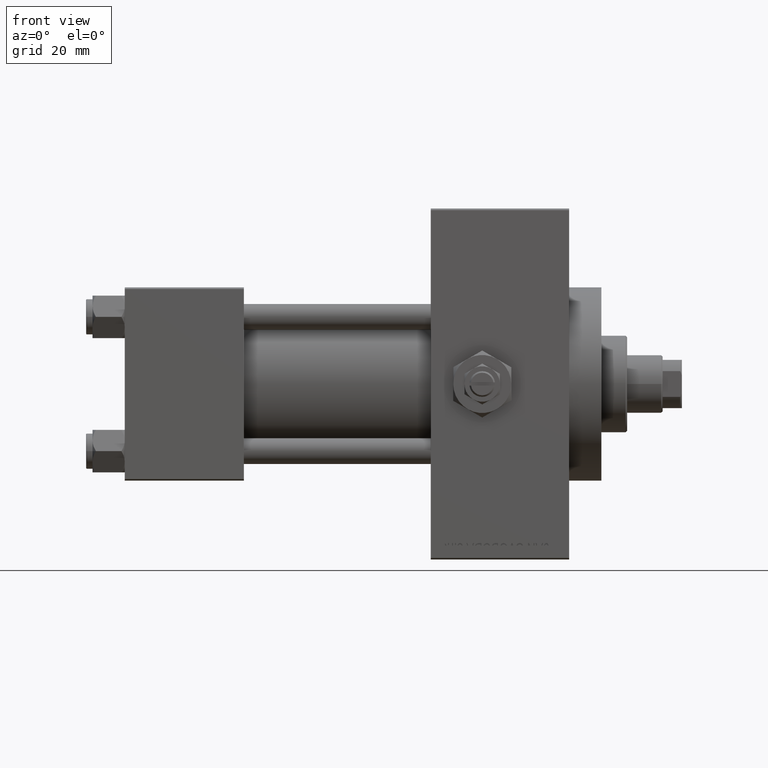
[diagram: clean part render]
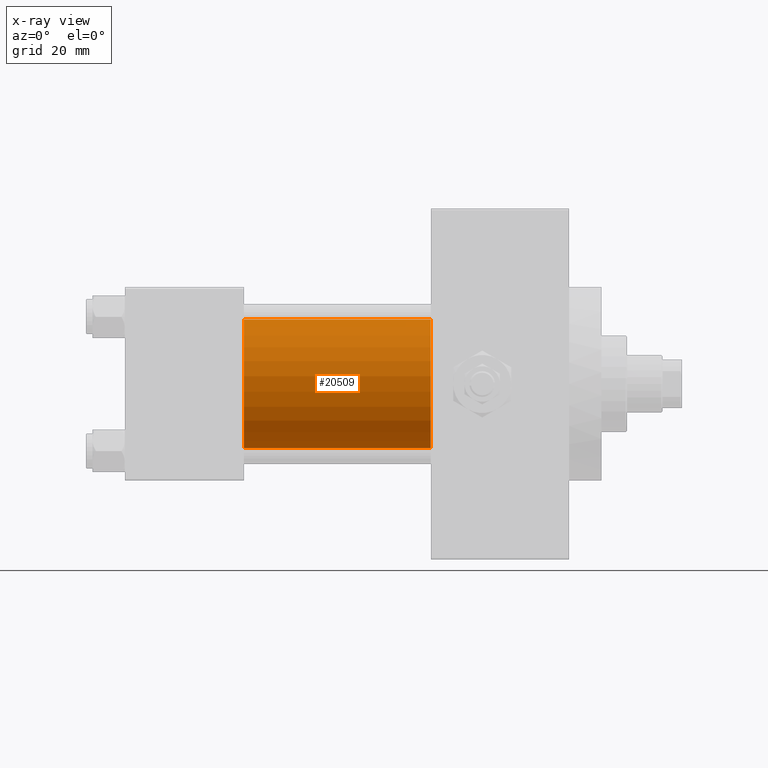
[diagram: x-ray — body ghosted, one internal face saturated and labeled with its STEP entity id]
A machine part, front view, then the same camera in x-ray: the body is ghosted and one INTERNAL B-rep face — a face not visible from any outside direction — is saturated and labeled: STEP entity #20509.
In plain terms, the highlighted cylindrical surface (partial cylindrical patch) has radius 20 mm, axis along (-1, -0, -0).
Its self-contained STEP definition (entity closure, byte-faithful):
#1184 = CIRCLE ( 'NONE', #15410, 20.00000000000000000 ) ;
#1363 = ORIENTED_EDGE ( 'NONE', *, *, #38021, .F. ) ;
#2668 = ORIENTED_EDGE ( 'NONE', *, *, #31068, .F. ) ;
#3313 = DIRECTION ( 'NONE',  ( 1.000000000000000000, 0.000000000000000000, 0.000000000000000000 ) ) ;
#3729 = CARTESIAN_POINT ( 'NONE',  ( 95.00000000000000000, -2.602085213965210642E-15, 0.000000000000000000 ) ) ;
#4342 = EDGE_LOOP ( 'NONE', ( #34397, #5295, #1363, #2668 ) ) ;
#5295 = ORIENTED_EDGE ( 'NONE', *, *, #20755, .T. ) ;
#9683 = DIRECTION ( 'NONE',  ( -1.000000000000000000, -0.000000000000000000, -0.000000000000000000 ) ) ;
#10664 = AXIS2_PLACEMENT_3D ( 'NONE', #12148, #3313, #36977 ) ;
#11612 = CARTESIAN_POINT ( 'NONE',  ( 37.00000000000000000, -1.527916156705046464E-16, -20.00000000000000000 ) ) ;
#12148 = CARTESIAN_POINT ( 'NONE',  ( 37.00000000000000000, -2.602085213965210642E-15, 0.000000000000000000 ) ) ;
#12336 = LINE ( 'NONE', #43509, #27137 ) ;
#12921 = CYLINDRICAL_SURFACE ( 'NONE', #31637, 20.00000000000000000 ) ;
#13387 = FACE_OUTER_BOUND ( 'NONE', #4342, .T. ) ;
#13545 = CARTESIAN_POINT ( 'NONE',  ( 95.00000000000000000, -1.527916156705046464E-16, -20.00000000000000000 ) ) ;
#14621 = DIRECTION ( 'NONE',  ( 1.000000000000000000, 0.000000000000000000, 0.000000000000000000 ) ) ;
#15410 = AXIS2_PLACEMENT_3D ( 'NONE', #3729, #14621, #23045 ) ;
#15679 = CARTESIAN_POINT ( 'NONE',  ( 95.00000000000000000, -2.602085213965210642E-15, 20.00000000000000000 ) ) ;
#19199 = VERTEX_POINT ( 'NONE', #19911 ) ;
#19911 = CARTESIAN_POINT ( 'NONE',  ( 37.00000000000000000, -2.602085213965210642E-15, 20.00000000000000000 ) ) ;
#20509 = ADVANCED_FACE ( 'NONE', ( #13387 ), #12921, .F. ) ;
#20755 = EDGE_CURVE ( 'NONE', #21599, #23323, #28493, .T. ) ;
#20959 = DIRECTION ( 'NONE',  ( -1.000000000000000000, -0.000000000000000000, -0.000000000000000000 ) ) ;
#21599 = VERTEX_POINT ( 'NONE', #13545 ) ;
#23045 = DIRECTION ( 'NONE',  ( 0.000000000000000000, 0.000000000000000000, -1.000000000000000000 ) ) ;
#23323 = VERTEX_POINT ( 'NONE', #11612 ) ;
#25014 = DIRECTION ( 'NONE',  ( -1.000000000000000000, -0.000000000000000000, -0.000000000000000000 ) ) ;
#25413 = VECTOR ( 'NONE', #9683, 1000.000000000000000 ) ;
#27137 = VECTOR ( 'NONE', #20959, 1000.000000000000000 ) ;
#28493 = LINE ( 'NONE', #35703, #25413 ) ;
#31068 = EDGE_CURVE ( 'NONE', #44983, #19199, #12336, .T. ) ;
#31637 = AXIS2_PLACEMENT_3D ( 'NONE', #32209, #25014, #32467 ) ;
#32209 = CARTESIAN_POINT ( 'NONE',  ( 95.00000000000000000, -2.602085213965210642E-15, 0.000000000000000000 ) ) ;
#32467 = DIRECTION ( 'NONE',  ( 0.000000000000000000, 0.000000000000000000, 1.000000000000000000 ) ) ;
#34397 = ORIENTED_EDGE ( 'NONE', *, *, #37135, .T. ) ;
#35703 = CARTESIAN_POINT ( 'NONE',  ( 95.00000000000000000, -1.527916156705046464E-16, -20.00000000000000000 ) ) ;
#36977 = DIRECTION ( 'NONE',  ( 0.000000000000000000, 0.000000000000000000, -1.000000000000000000 ) ) ;
#37135 = EDGE_CURVE ( 'NONE', #44983, #21599, #1184, .T. ) ;
#38021 = EDGE_CURVE ( 'NONE', #19199, #23323, #47027, .T. ) ;
#43509 = CARTESIAN_POINT ( 'NONE',  ( 95.00000000000000000, -2.602085213965210642E-15, 20.00000000000000000 ) ) ;
#44983 = VERTEX_POINT ( 'NONE', #15679 ) ;
#47027 = CIRCLE ( 'NONE', #10664, 20.00000000000000000 ) ;